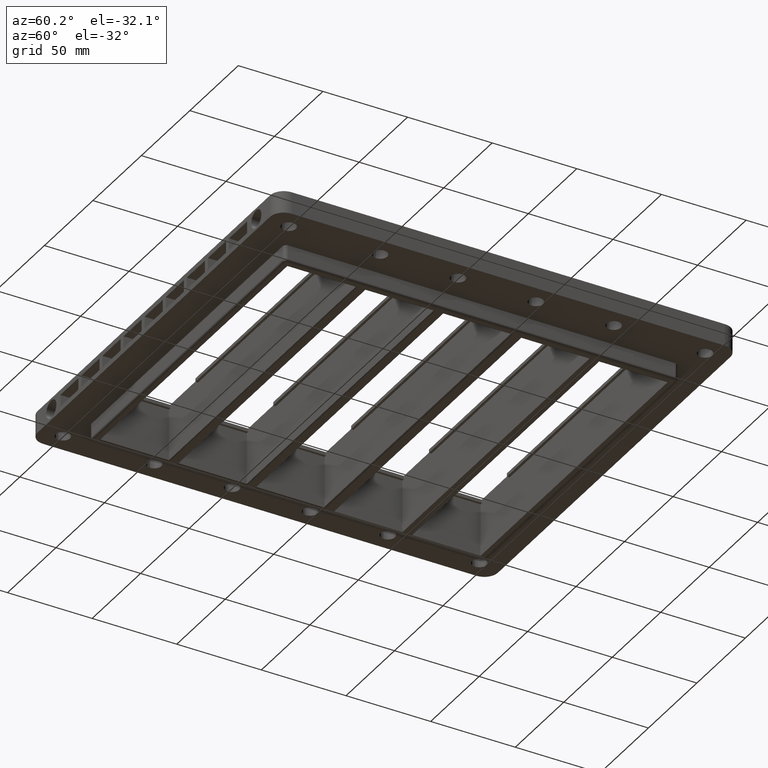
[diagram: clean part render]
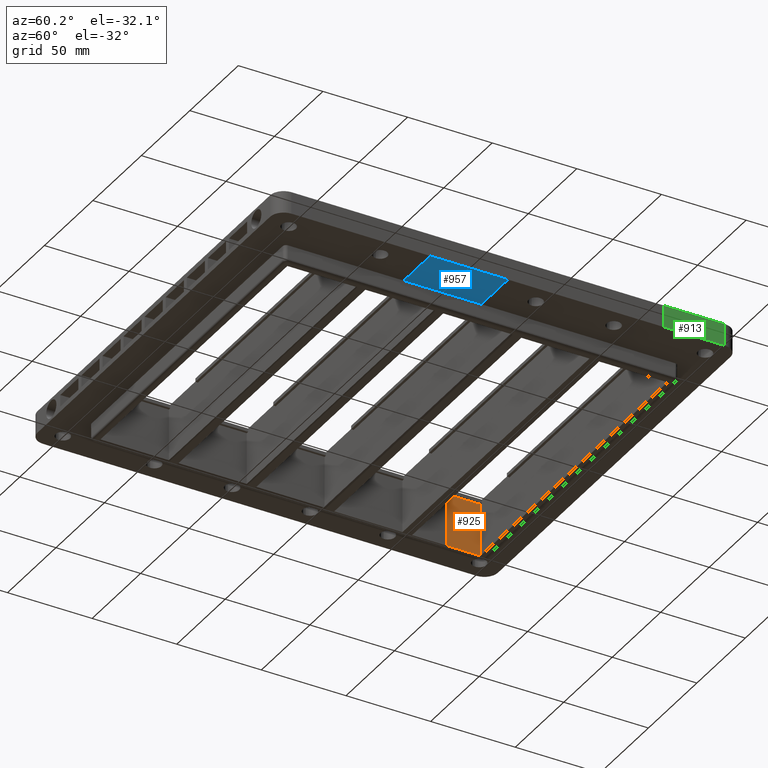
[diagram: same view with three faces highlighted in distinct colors, each labeled with its STEP entity id]
A machine part, auxiliary view with three faces highlighted in distinct colors.
Their STEP definitions:

[orange] entity #925 — the highlighted planar face has unit normal (1, 0, -0.0087).
#925=ADVANCED_FACE('',(#1614),#1266,.T.);
#1266=PLANE('',#8214);
#1614=FACE_OUTER_BOUND('',#2084,.T.);
#2084=EDGE_LOOP('',(#3751,#3752,#3753,#3754));
#3751=ORIENTED_EDGE('',*,*,#5799,.F.);
#3752=ORIENTED_EDGE('',*,*,#5587,.T.);
#3753=ORIENTED_EDGE('',*,*,#5792,.T.);
#3754=ORIENTED_EDGE('',*,*,#5795,.T.);
#4707=VERTEX_POINT('',#11602);
#4709=VERTEX_POINT('',#11606);
#4836=VERTEX_POINT('',#12037);
#4838=VERTEX_POINT('',#12043);
#5587=EDGE_CURVE('',#4707,#4709,#6524,.T.);
#5792=EDGE_CURVE('',#4709,#4836,#6688,.T.);
#5795=EDGE_CURVE('',#4836,#4838,#6691,.T.);
#5799=EDGE_CURVE('',#4707,#4838,#6695,.T.);
#6524=LINE('',#11607,#7370);
#6688=LINE('',#12038,#7534);
#6691=LINE('',#12044,#7537);
#6695=LINE('',#12052,#7541);
#7370=VECTOR('',#9458,1.);
#7534=VECTOR('',#9870,1.);
#7537=VECTOR('',#9875,1.);
#7541=VECTOR('',#9883,1.);
#8214=AXIS2_PLACEMENT_3D('',#12053,#9884,#9885);
#9458=DIRECTION('',(2.62090779613797E-34,-1.,7.37755417824918E-51));
#9870=DIRECTION('',(-0.00872653549837401,0.,-0.999961923064171));
#9875=DIRECTION('',(-2.62090779613797E-34,1.,0.));
#9883=DIRECTION('',(-0.00872643861257958,0.00471219211068904,-0.999950821048042));
#9884=DIRECTION('',(0.999961923064171,2.620808E-34,-0.00872653549837401));
#9885=DIRECTION('',(0.008726535498374,0.,0.999961923064171));
#11602=CARTESIAN_POINT('',(-106.229467098486,-2.89809228528051,31.));
#11606=CARTESIAN_POINT('',(-106.229467098487,-22.9999999999999,31.));
#11607=CARTESIAN_POINT('',(-106.229467098487,-42.9794670984864,31.));
#12037=CARTESIAN_POINT('',(-106.5,-22.9999999999999,0.));
#12038=CARTESIAN_POINT('',(-106.360370115348,-22.9999999999999,16.));
#12043=CARTESIAN_POINT('',(-106.5,-2.75200714553508,0.));
#12044=CARTESIAN_POINT('',(-106.5,-33.1249999999999,0.));
#12052=CARTESIAN_POINT('',(-106.299282040812,-2.86039289437846,23.));
#12053=CARTESIAN_POINT('',(-106.360370115348,-33.1249999999999,16.));

[blue] entity #957 — the highlighted planar face has unit normal (0, 0, 1).
#379=FACE_BOUND('',#2128,.T.);
#380=FACE_BOUND('',#2129,.T.);
#591=CIRCLE('',#8266,4.24999999999999);
#957=ADVANCED_FACE('',(#379,#380),#1289,.F.);
#1289=PLANE('',#8267);
#2128=EDGE_LOOP('',(#3920));
#2129=EDGE_LOOP('',(#3921,#3922,#3923,#3924));
#3920=ORIENTED_EDGE('',*,*,#5906,.F.);
#3921=ORIENTED_EDGE('',*,*,#5901,.T.);
#3922=ORIENTED_EDGE('',*,*,#5907,.F.);
#3923=ORIENTED_EDGE('',*,*,#5866,.F.);
#3924=ORIENTED_EDGE('',*,*,#5908,.F.);
#4897=VERTEX_POINT('',#12191);
#4898=VERTEX_POINT('',#12192);
#4918=VERTEX_POINT('',#12259);
#4919=VERTEX_POINT('',#12261);
#4923=VERTEX_POINT('',#12274);
#5866=EDGE_CURVE('',#4897,#4898,#6752,.T.);
#5901=EDGE_CURVE('',#4919,#4918,#6780,.T.);
#5906=EDGE_CURVE('',#4923,#4923,#591,.T.);
#5907=EDGE_CURVE('',#4898,#4918,#6782,.T.);
#5908=EDGE_CURVE('',#4919,#4897,#6783,.T.);
#6752=LINE('',#12190,#7598);
#6780=LINE('',#12260,#7626);
#6782=LINE('',#12275,#7628);
#6783=LINE('',#12276,#7629);
#7598=VECTOR('',#9990,1.);
#7626=VECTOR('',#10058,1.);
#7628=VECTOR('',#10076,1.);
#7629=VECTOR('',#10077,1.);
#8266=AXIS2_PLACEMENT_3D('',#12273,#10074,#10075);
#8267=AXIS2_PLACEMENT_3D('',#12277,#10078,#10079);
#9990=DIRECTION('',(0.,-1.,0.));
#10058=DIRECTION('',(0.,-1.,0.));
#10074=DIRECTION('',(0.,0.,-1.));
#10075=DIRECTION('',(1.,0.,0.));
#10076=DIRECTION('',(1.,0.,0.));
#10077=DIRECTION('',(-1.,0.,0.));
#10078=DIRECTION('',(0.,0.,1.));
#10079=DIRECTION('',(1.,0.,0.));
#12190=CARTESIAN_POINT('',(90.5872686779076,-67.9999999999999,10.));
#12191=CARTESIAN_POINT('',(90.5872686779076,-115.,10.));
#12192=CARTESIAN_POINT('',(90.5872686779076,-161.,10.0000000000007));
#12259=CARTESIAN_POINT('',(118.,-161.,10.0000000000011));
#12260=CARTESIAN_POINT('',(118.,-67.9999999999999,10.));
#12261=CARTESIAN_POINT('',(118.,-115.,10.));
#12273=CARTESIAN_POINT('',(106.5,-138.,9.99999999999999));
#12274=CARTESIAN_POINT('',(110.75,-138.,9.99999999999999));
#12275=CARTESIAN_POINT('',(90.5872686779076,-161.,10.0000000000011));
#12276=CARTESIAN_POINT('',(118.,-115.,10.));
#12277=CARTESIAN_POINT('',(118.,-67.9999999999999,10.));

[green] entity #913 — the highlighted planar face has unit normal (1, 0, 0).
#913=ADVANCED_FACE('',(#1604),#1256,.T.);
#1256=PLANE('',#8201);
#1604=FACE_OUTER_BOUND('',#2068,.T.);
#2068=EDGE_LOOP('',(#3674,#3675,#3676,#3677));
#3674=ORIENTED_EDGE('',*,*,#5734,.T.);
#3675=ORIENTED_EDGE('',*,*,#5775,.T.);
#3676=ORIENTED_EDGE('',*,*,#5563,.T.);
#3677=ORIENTED_EDGE('',*,*,#5778,.F.);
#4685=VERTEX_POINT('',#11556);
#4687=VERTEX_POINT('',#11559);
#4811=VERTEX_POINT('',#11912);
#4812=VERTEX_POINT('',#11914);
#5563=EDGE_CURVE('',#4687,#4685,#6503,.T.);
#5734=EDGE_CURVE('',#4811,#4812,#6648,.T.);
#5775=EDGE_CURVE('',#4812,#4687,#6672,.T.);
#5778=EDGE_CURVE('',#4811,#4685,#6675,.T.);
#6503=LINE('',#11558,#7349);
#6648=LINE('',#11915,#7494);
#6672=LINE('',#12007,#7518);
#6675=LINE('',#12011,#7521);
#7349=VECTOR('',#9427,1.);
#7494=VECTOR('',#9744,1.);
#7518=VECTOR('',#9832,1.);
#7521=VECTOR('',#9837,1.);
#8201=AXIS2_PLACEMENT_3D('',#12012,#9838,#9839);
#9427=DIRECTION('',(0.,0.,-1.));
#9744=DIRECTION('',(0.,0.,1.));
#9832=DIRECTION('',(0.,-1.,0.));
#9837=DIRECTION('',(0.,-1.,0.));
#9838=DIRECTION('',(1.,0.,0.));
#9839=DIRECTION('',(0.,0.,1.));
#11556=CARTESIAN_POINT('',(118.,-22.9999999999999,10.));
#11558=CARTESIAN_POINT('',(118.,-22.9999999999999,-4.44089209850063E-13));
#11559=CARTESIAN_POINT('',(118.,-22.9999999999999,22.9999999999996));
#11912=CARTESIAN_POINT('',(118.,13.0000000000001,9.99999999999978));
#11914=CARTESIAN_POINT('',(118.,13.0000000000001,22.9999999999995));
#11915=CARTESIAN_POINT('',(118.,13.0000000000001,16.4999999999995));
#12007=CARTESIAN_POINT('',(118.,21.0000000000001,22.9999999999995));
#12011=CARTESIAN_POINT('',(118.,21.0000000000001,10.));
#12012=CARTESIAN_POINT('',(118.,21.0000000000001,16.4999999999995));